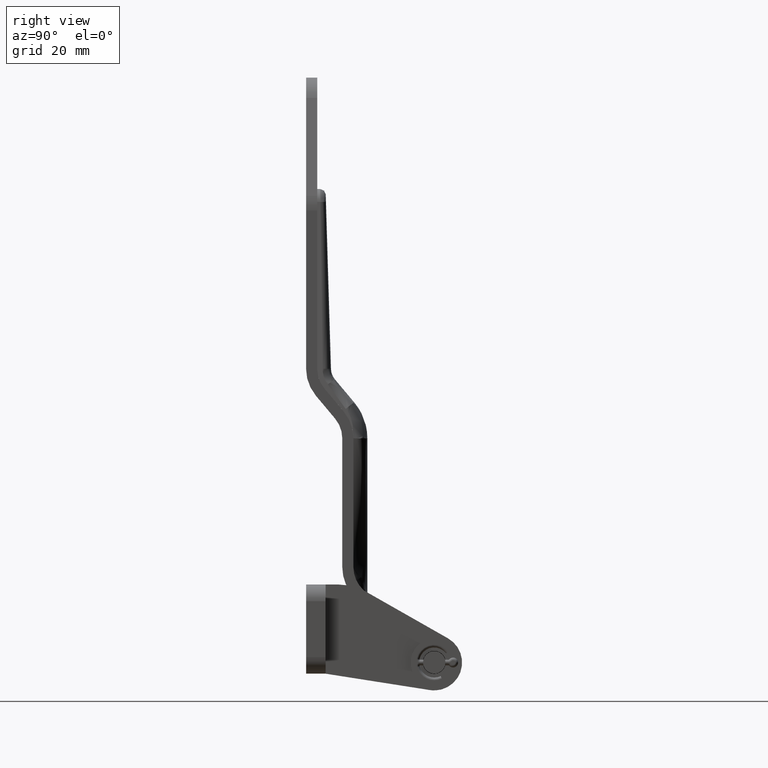
[diagram: clean part render]
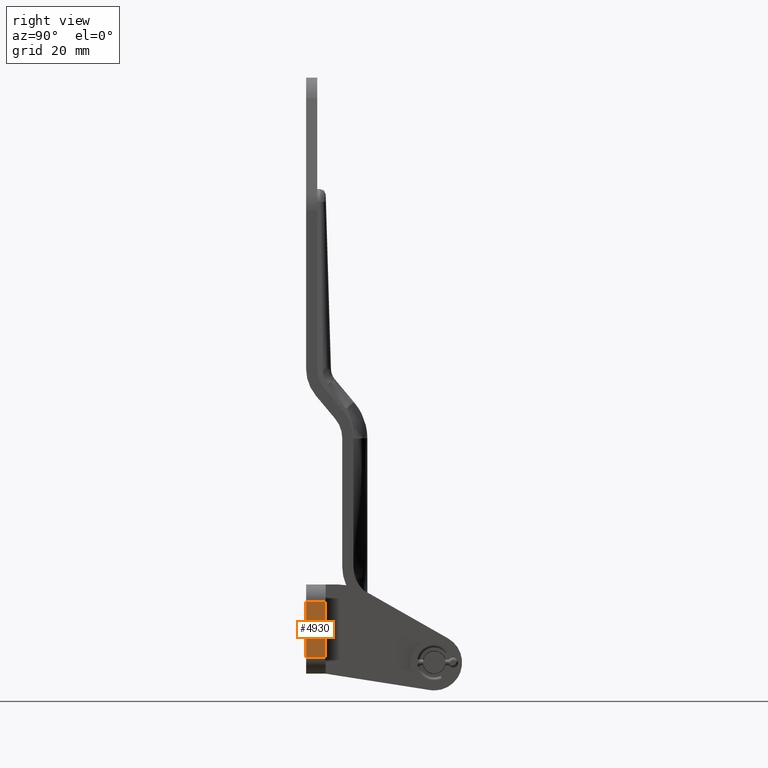
[diagram: same view with one face highlighted and labeled with its STEP entity id]
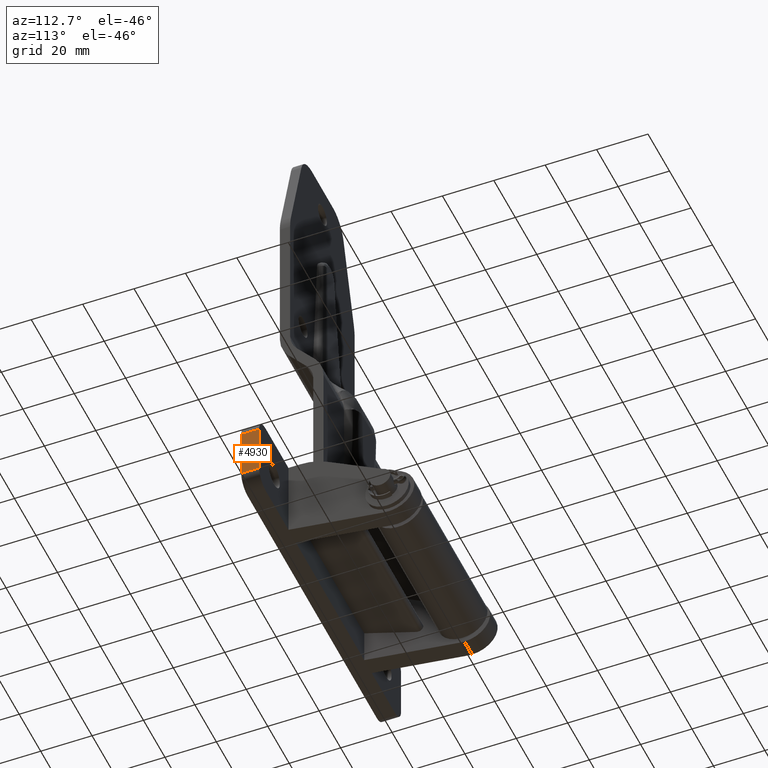
[diagram: same view with one face highlighted and labeled with its STEP entity id]
A machine part, right view. The second image highlights one B-rep face of the part: STEP entity #4930.
A second angle (auxiliary view) of the same face is appended — the face is thin or edge-on in the first view.
In plain terms, the highlighted planar face has unit normal (-1, 0, 0).
Its self-contained STEP definition (entity closure, byte-faithful):
#33 = EDGE_CURVE ( 'NONE', #3046, #3019, #4526, .T. ) ;
#233 = VECTOR ( 'NONE', #1448, 1000.000000000000000 ) ;
#310 = ORIENTED_EDGE ( 'NONE', *, *, #1024, .F. ) ;
#315 = ORIENTED_EDGE ( 'NONE', *, *, #1047, .F. ) ;
#341 = ORIENTED_EDGE ( 'NONE', *, *, #33, .T. ) ;
#350 = ORIENTED_EDGE ( 'NONE', *, *, #1025, .T. ) ;
#414 = CARTESIAN_POINT ( 'NONE',  ( 66.00000000000000000, -39.00000000000000000, 1.999999999999999600 ) ) ;
#415 = CARTESIAN_POINT ( 'NONE',  ( 66.00000000000000000, -39.00000000000000000, 22.00000000000000000 ) ) ;
#504 = CARTESIAN_POINT ( 'NONE',  ( 66.00000000000000000, -46.00000000000000000, 1.999999999999999600 ) ) ;
#531 = CARTESIAN_POINT ( 'NONE',  ( 66.00000000000000000, -46.00000000000000000, 22.00000000000000000 ) ) ;
#957 = PLANE ( 'NONE',  #4708 ) ;
#958 = CARTESIAN_POINT ( 'NONE',  ( 66.00000000000000000, -39.00000000000000000, 1.999999999999999100 ) ) ;
#959 = DIRECTION ( 'NONE',  ( -1.000000000000000000, 0.0000000000000000000, 0.0000000000000000000 ) ) ;
#960 = DIRECTION ( 'NONE',  ( 0.0000000000000000000, 0.0000000000000000000, 1.000000000000000000 ) ) ;
#1024 = EDGE_CURVE ( 'NONE', #2563, #3019, #1343, .T. ) ;
#1025 = EDGE_CURVE ( 'NONE', #2564, #3046, #1346, .T. ) ;
#1047 = EDGE_CURVE ( 'NONE', #2564, #2563, #1446, .T. ) ;
#1343 = LINE ( 'NONE', #1344, #5174 ) ;
#1344 = CARTESIAN_POINT ( 'NONE',  ( 66.00000000000000000, -39.00000000000000000, 1.999999999999999600 ) ) ;
#1345 = DIRECTION ( 'NONE',  ( -0.0000000000000000000, -1.000000000000000000, -0.0000000000000000000 ) ) ;
#1346 = LINE ( 'NONE', #1347, #5158 ) ;
#1347 = CARTESIAN_POINT ( 'NONE',  ( 66.00000000000000000, -39.00000000000000000, 22.00000000000000000 ) ) ;
#1348 = DIRECTION ( 'NONE',  ( -0.0000000000000000000, -1.000000000000000000, -0.0000000000000000000 ) ) ;
#1446 = LINE ( 'NONE', #1447, #233 ) ;
#1447 = CARTESIAN_POINT ( 'NONE',  ( 66.00000000000000000, -39.00000000000000000, 1.999999999999999100 ) ) ;
#1448 = DIRECTION ( 'NONE',  ( -0.0000000000000000000, -0.0000000000000000000, -1.000000000000000000 ) ) ;
#1950 = VECTOR ( 'NONE', #4528, 1000.000000000000000 ) ;
#2563 = VERTEX_POINT ( 'NONE', #414 ) ;
#2564 = VERTEX_POINT ( 'NONE', #415 ) ;
#3019 = VERTEX_POINT ( 'NONE', #504 ) ;
#3046 = VERTEX_POINT ( 'NONE', #531 ) ;
#3204 = EDGE_LOOP ( 'NONE', ( #341, #310, #315, #350 ) ) ;
#4526 = LINE ( 'NONE', #4527, #1950 ) ;
#4527 = CARTESIAN_POINT ( 'NONE',  ( 66.00000000000000000, -46.00000000000000000, 1.999999999999999100 ) ) ;
#4528 = DIRECTION ( 'NONE',  ( -0.0000000000000000000, -0.0000000000000000000, -1.000000000000000000 ) ) ;
#4706 = FACE_OUTER_BOUND ( 'NONE', #3204, .T. ) ;
#4708 = AXIS2_PLACEMENT_3D ( 'NONE', #958, #959, #960 ) ;
#4930 = ADVANCED_FACE ( 'NONE', ( #4706 ), #957, .F. ) ;
#5158 = VECTOR ( 'NONE', #1348, 1000.000000000000000 ) ;
#5174 = VECTOR ( 'NONE', #1345, 1000.000000000000000 ) ;